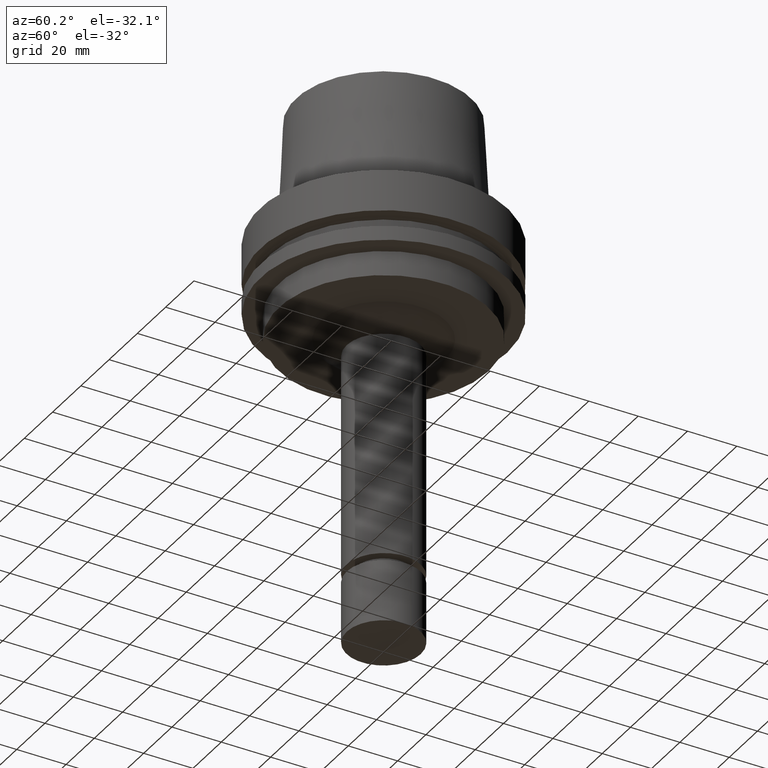
[diagram: clean part render]
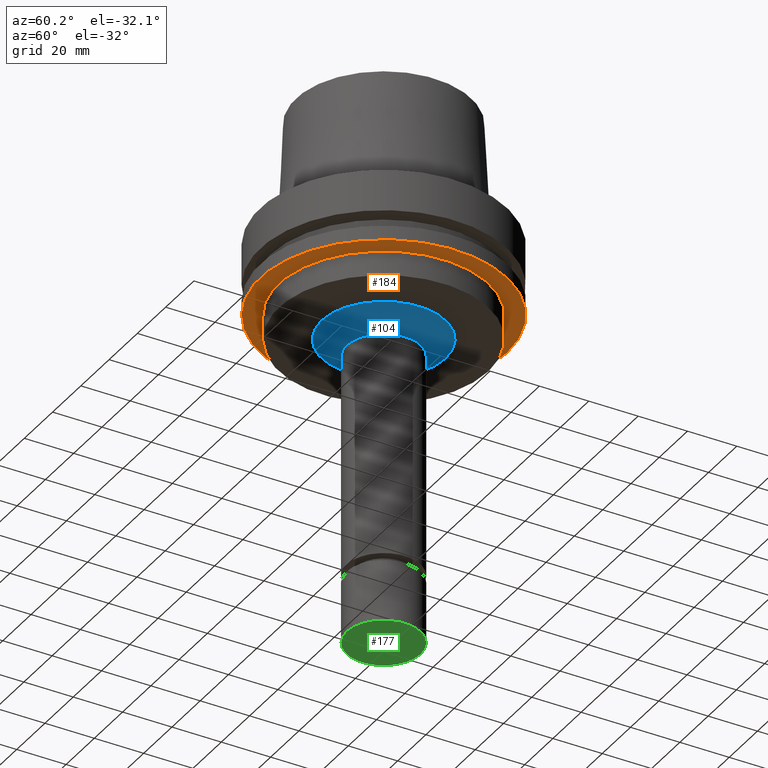
[diagram: same view with three faces highlighted in distinct colors, each labeled with its STEP entity id]
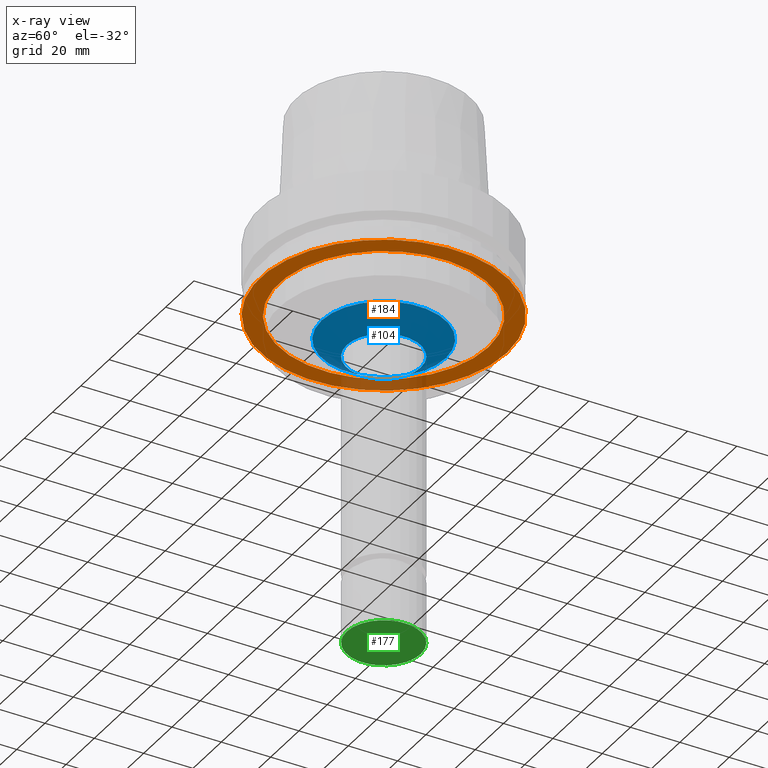
[diagram: x-ray of the same camera — body ghosted, the three highlighted faces saturated]
A machine part, auxiliary view with three faces highlighted in distinct colors.
The next image is the same camera in x-ray (body ghosted, the three faces saturated) — at least one of them is partly hidden behind the body in this view.
Their STEP definitions:

[orange] entity #184 — the highlighted planar face has unit normal (0, 0, -1).
#172=EDGE_CURVE('Unnamed[1]',#362,#362,#363,.T.);
#181=EDGE_CURVE('Unnamed[1]',#375,#375,#376,.T.);
#184=ADVANCED_FACE('Unnamed[1]',(#379,#380),#381,.T.);
#362=VERTEX_POINT('',#595);
#363=CIRCLE('',#596,50.0);
#375=VERTEX_POINT('',#612);
#376=CIRCLE('',#613,42.5);
#379=FACE_BOUND('',#617,.T.);
#380=FACE_OUTER_BOUND('',#618,.T.);
#381=PLANE('',#619);
#595=CARTESIAN_POINT('',(1.77573785876366E-015,50.0,-29.0));
#596=AXIS2_PLACEMENT_3D('',#810,#811,#812);
#612=CARTESIAN_POINT('',(1.77573785876366E-015,42.5,-29.0));
#613=AXIS2_PLACEMENT_3D('',#824,#825,#826);
#617=EDGE_LOOP('',(#828));
#618=EDGE_LOOP('',(#829));
#619=AXIS2_PLACEMENT_3D('',#830,#831,#832);
#810=CARTESIAN_POINT('',(1.77573785876366E-015,3.55147571752733E-015,-29.0));
#811=DIRECTION('',(6.12323399573677E-017,1.22464679914735E-016,-1.0));
#812=DIRECTION('',(-1.23259516440783E-032,1.0,1.22464679914735E-016));
#824=CARTESIAN_POINT('',(1.77573785876366E-015,3.55147571752733E-015,-29.0));
#825=DIRECTION('',(6.12323399573677E-017,1.22464679914735E-016,-1.0));
#826=DIRECTION('',(-1.23259516440783E-032,1.0,1.22464679914735E-016));
#828=ORIENTED_EDGE('',*,*,#181,.F.);
#829=ORIENTED_EDGE('',*,*,#172,.T.);
#830=CARTESIAN_POINT('',(1.77573785876366E-015,46.25,-29.0));
#831=DIRECTION('',(6.12323399573677E-017,1.22464679914735E-016,-1.0));
#832=DIRECTION('',(-1.23259516440783E-032,1.0,1.22464679914735E-016));

[blue] entity #104 — the highlighted conical surface has half-angle 55.144 deg.
#99=EDGE_CURVE('Unnamed[1]',#250,#250,#251,.T.);
#104=ADVANCED_FACE('Unnamed[1]',(#257,#258),#259,.T.);
#136=EDGE_CURVE('Unnamed[1]',#307,#307,#308,.T.);
#250=VERTEX_POINT('',#457);
#251=CIRCLE('',#458,15.0);
#257=FACE_BOUND('',#466,.T.);
#258=FACE_BOUND('',#467,.T.);
#259=CONICAL_SURFACE('',#468,20.0717863357269,0.962446965068553);
#307=VERTEX_POINT('',#527);
#308=CIRCLE('',#528,25.1435726714537);
#457=CARTESIAN_POINT('',(2.82064573751942E-015,15.0,-46.06464067));
#458=AXIS2_PLACEMENT_3D('',#687,#688,#689);
#466=EDGE_LOOP('',(#694));
#467=EDGE_LOOP('',(#695));
#468=AXIS2_PLACEMENT_3D('',#696,#697,#698);
#527=CARTESIAN_POINT('',(2.38806125833734E-015,25.1435726714537,-39.0));
#528=AXIS2_PLACEMENT_3D('',#750,#751,#752);
#687=CARTESIAN_POINT('',(2.82064573751942E-015,5.64129147503885E-015,-46.06464067));
#688=DIRECTION('',(6.12323399573677E-017,1.22464679914735E-016,-1.0));
#689=DIRECTION('',(-1.23259516440783E-032,1.0,1.22464679914735E-016));
#694=ORIENTED_EDGE('',*,*,#99,.F.);
#695=ORIENTED_EDGE('',*,*,#136,.T.);
#696=CARTESIAN_POINT('',(2.60435349792838E-015,5.20870699585676E-015,-42.532320335));
#697=DIRECTION('',(-6.12323399573677E-017,-1.22464679914735E-016,1.0));
#698=DIRECTION('',(-1.23259516440783E-032,1.0,1.22464679914735E-016));
#750=CARTESIAN_POINT('',(2.38806125833734E-015,4.77612251667468E-015,-39.0));
#751=DIRECTION('',(6.12323399573677E-017,1.22464679914735E-016,-1.0));
#752=DIRECTION('',(-1.23259516440783E-032,1.0,1.22464679914735E-016));

[green] entity #177 — the highlighted planar face has unit normal (0, 0, -1).
#177=ADVANCED_FACE('Unnamed[1]',(#369),#370,.T.);
#196=EDGE_CURVE('Unnamed[1]',#399,#399,#400,.T.);
#369=FACE_OUTER_BOUND('',#604,.T.);
#370=PLANE('',#605);
#399=VERTEX_POINT('',#642);
#400=CIRCLE('',#643,15.0);
#604=EDGE_LOOP('',(#817));
#605=AXIS2_PLACEMENT_3D('',#818,#819,#820);
#642=CARTESIAN_POINT('',(1.01033360929657E-014,15.0,-165.0));
#643=AXIS2_PLACEMENT_3D('',#851,#852,#853);
#817=ORIENTED_EDGE('',*,*,#196,.T.);
#818=CARTESIAN_POINT('',(1.01033360929657E-014,7.50000000000002,-165.0));
#819=DIRECTION('',(6.12323399573677E-017,1.22464679914735E-016,-1.0));
#820=DIRECTION('',(-1.23259516440783E-032,1.0,1.22464679914735E-016));
#851=CARTESIAN_POINT('',(1.01033360929657E-014,2.02066721859313E-014,-165.0));
#852=DIRECTION('',(6.12323399573677E-017,1.22464679914735E-016,-1.0));
#853=DIRECTION('',(-1.23259516440783E-032,1.0,1.22464679914735E-016));